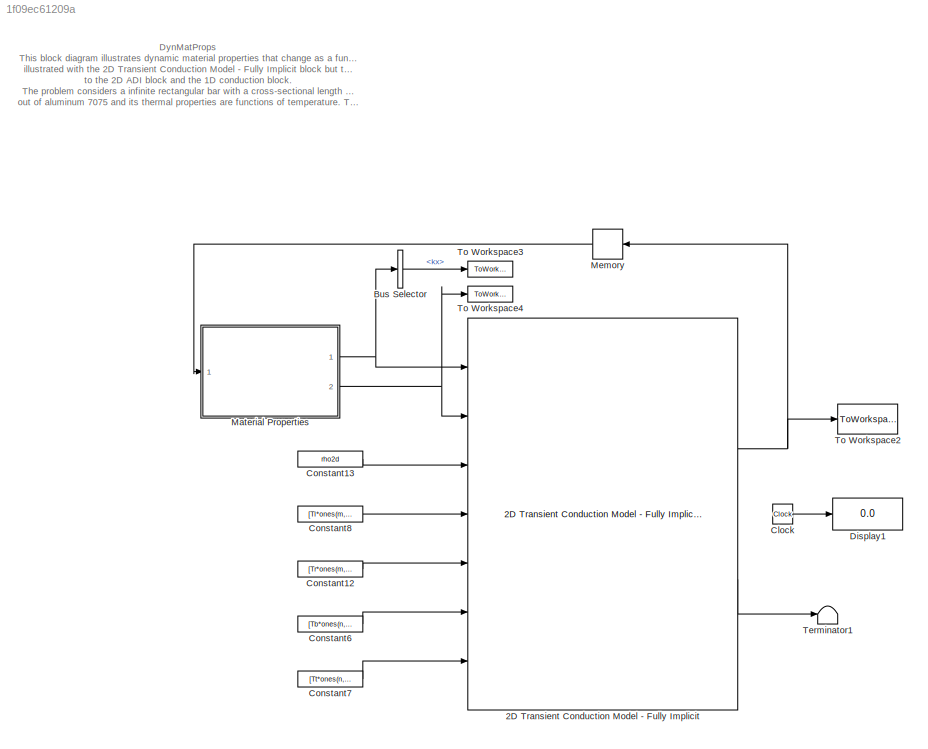
MODEL slx_1f09ec61209a
KIND model
CONFIG AbsTol = auto
CONFIG FixedStep = dt
CONFIG MaxStep = auto
CONFIG MinStep = auto
CONFIG RelTol = 1e-3
CONFIG SampleTimeConstraint = Unconstrained
CONFIG Solver = FixedStepDiscrete
CONFIG SolverMode = Auto
CONFIG SolverName = FixedStepDiscrete
CONFIG StartTime = 0.0
CONFIG StopTime = tsim
BLOCK [Reference] 2D Transient Conduction Model - Fully Implicit  REF=lib_Conduction_2DCondFullyImplicit/2D Transient Conduction Model - Fully Implicit
  BN_M = double(gcb)
  Ports = [7, 2]
  SourceBlock = lib_Conduction_2DCondFullyImplicit/2D Transient Conduction Model - Fully Implicit
  SourceType = TSAT: 2-D Transient Conduction Model - Fully Implicit Block
  T0_M = T02d
  condB_M = off
  condL_M = off
  condR_M = off
  condT_M = off
  convB_M = on
  convL_M = on
  convR_M = on
  convT_M = on
  dt_M = dt
  radB_M = off
  radL_M = off
  radR_M = off
  radT_M = off
  shape_M = Planar in both directions
  x_M = x
  y_M = y0
BLOCK [BusSelector] Bus Selector
  OutputSignals = kx
  Ports = [1, 1]
BLOCK [Clock] Clock
BLOCK [Constant] Constant12
  Value = [Tr*ones(m,1) hr*ones(m,1)]
BLOCK [Constant] Constant13
  Value = rho2d
BLOCK [Constant] Constant6
  Value = [Tb*ones(n,1) hb*ones(n,1)]
BLOCK [Constant] Constant7
  Value = [Tt*ones(n,1) ht*ones(n,1)]
BLOCK [Constant] Constant8
  Value = [Tl*ones(m,1) hl*ones(m,1)]
BLOCK [Display] Display1
  Decimation = 1
  Ports = [1]
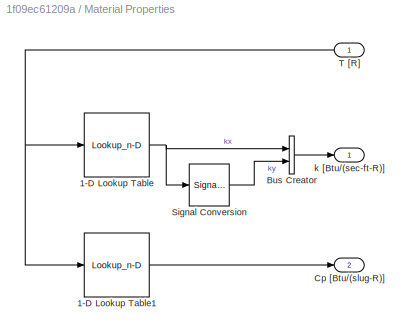
BLOCK [SubSystem] Material Properties
  Ports = [1, 2]
  RequestExecContextInheritance = off
BLOCK [Lookup_n-D] Material Properties/1-D Lookup Table
  BreakpointsForDimension1 = Tk_data
  InternalRulePriority = Speed
  NumberOfTableDimensions = 1
  Ports = [1, 1]
  RndMeth = Simplest
  Table = k_data
BLOCK [Lookup_n-D] Material Properties/1-D Lookup Table1
  BreakpointsForDimension1 = TCp_data
  InternalRulePriority = Speed
  NumberOfTableDimensions = 1
  Ports = [1, 1]
  RndMeth = Simplest
  Table = Cp_data
BLOCK [BusCreator] Material Properties/Bus Creator
  DisplayOption = bar
  Inputs = 2
  Ports = [2, 1]
BLOCK [Outport] Material Properties/Cp [Btu//(slug-R)]
  IconDisplay = Port number
  Port = 2
BLOCK [SignalConversion] Material Properties/Signal Conversion
BLOCK [Inport] Material Properties/T [R]
  IconDisplay = Port number
BLOCK [Outport] Material Properties/k [Btu//(sec-ft-R)]
  IconDisplay = Port number
BLOCK [Memory] Memory
  X0 = T02d
BLOCK [Terminator] Terminator1
BLOCK [ToWorkspace] To Workspace2
  FixptAsFi = on
  MaxDataPoints = inf
  Ports = [1]
  SampleTime = -1
  Save2DSignal = 3-D array (concatenate along third dimension)
  SaveFormat = Timeseries
  VariableName = T2d_dyn
BLOCK [ToWorkspace] To Workspace3
  FixptAsFi = on
  MaxDataPoints = inf
  Ports = [1]
  SampleTime = -1
  Save2DSignal = 3-D array (concatenate along third dimension)
  SaveFormat = Timeseries
  VariableName = k_dyn
BLOCK [ToWorkspace] To Workspace4
  FixptAsFi = on
  MaxDataPoints = inf
  Ports = [1]
  SampleTime = -1
  Save2DSignal = 3-D array (concatenate along third dimension)
  SaveFormat = Timeseries
  VariableName = Cp_dyn
ANNOTATION (root): DynMatProps This block diagram illustrates dynamic material properties that change as a function of temperature. The example is illustrated with the 2D Transient Conduction Model - Fully Implicit block but the same techniques are applicable to the 2D ADI block and the 1D conduction block. The problem considers a infinite rectangular bar with a cross-sectional length of 1ft and width of 1ft. The ba...<+282ch>
NET 2D Transient Conduction Model - Fully Implicit:1 -> Memory:1, To Workspace2:1
LINE 2D Transient Conduction Model - Fully Implicit:2 -> Terminator1:1
LINE Bus Selector:1 -> To Workspace3:1
LINE Clock:1 -> Display1:1
LINE Constant12:1 -> 2D Transient Conduction Model - Fully Implicit:5
LINE Constant13:1 -> 2D Transient Conduction Model - Fully Implicit:3
LINE Constant6:1 -> 2D Transient Conduction Model - Fully Implicit:6
LINE Constant7:1 -> 2D Transient Conduction Model - Fully Implicit:7
LINE Constant8:1 -> 2D Transient Conduction Model - Fully Implicit:4
LINE Material Properties/1-D Lookup Table1:1 -> Material Properties/Cp [Btu//(slug-R)]:1
NET Material Properties/1-D Lookup Table:1 -> Material Properties/Bus Creator:1, Material Properties/Signal Conversion:1
LINE Material Properties/Bus Creator:1 -> Material Properties/k [Btu//(sec-ft-R)]:1
LINE Material Properties/Signal Conversion:1 -> Material Properties/Bus Creator:2
NET Material Properties/T [R]:1 -> Material Properties/1-D Lookup Table1:1, Material Properties/1-D Lookup Table:1
NET Material Properties:1 -> 2D Transient Conduction Model - Fully Implicit:1, Bus Selector:1
NET Material Properties:2 -> 2D Transient Conduction Model - Fully Implicit:2, To Workspace4:1
LINE Memory:1 -> Material Properties:1
note: NET lines group one-source signal fan-out (src -> all destinations, sorted); 1:1 wires keep LINE
